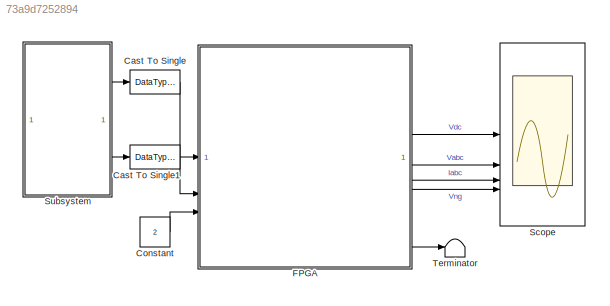
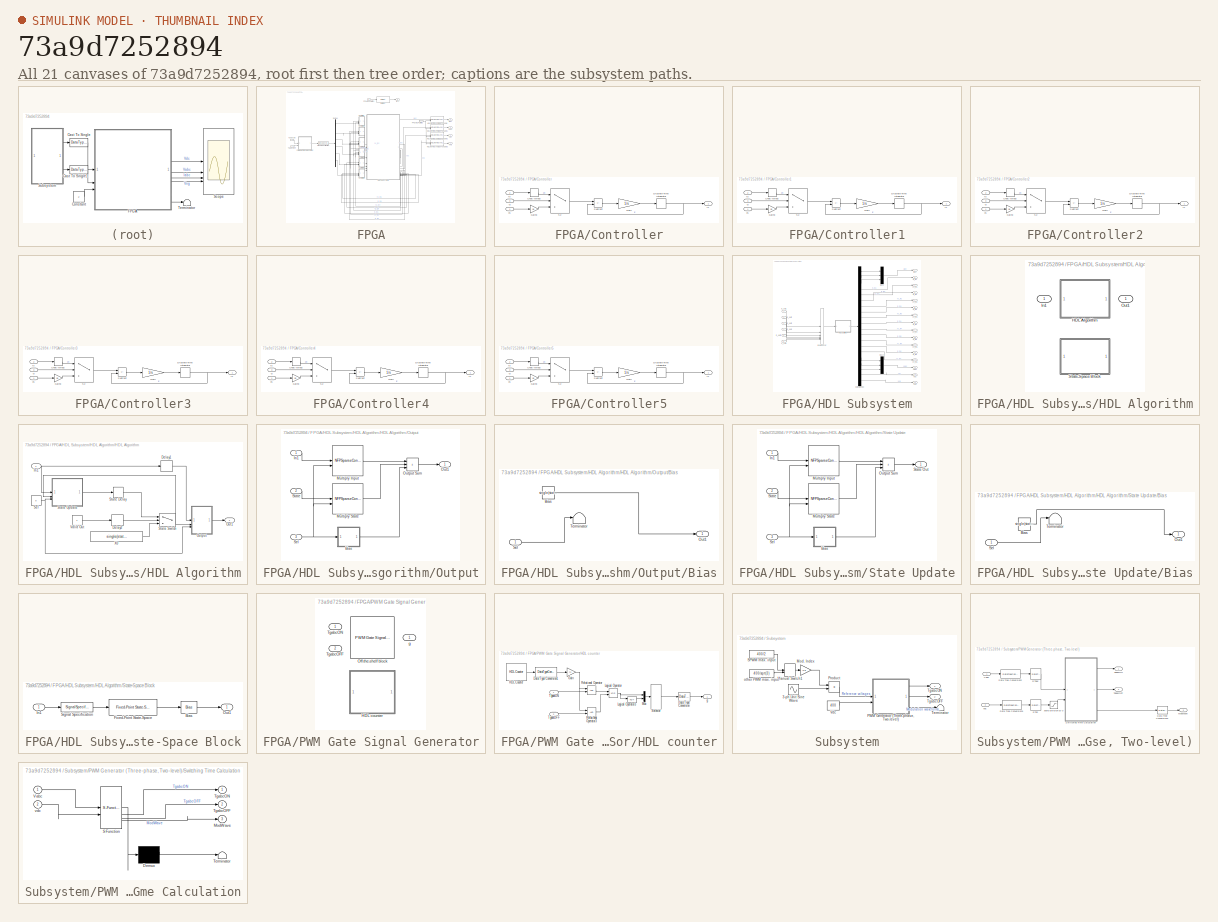
[diagram: thumbnail index - all 21 canvases of the model, root first then tree order]
MODEL slx_73a9d7252894
KIND model
CONFIG AbsTol = auto
CONFIG EnableMultiTasking = off
CONFIG FixedStep = auto
CONFIG InitFcn = load('stateSpaceParameters.mat');
CONFIG MaxStep = auto
CONFIG MinStep = auto
CONFIG PreLoadFcn = ts = 1e-5; % local solver sample period\nfsw = 1e3; % switching frequency
CONFIG RelTol = 1e-3
CONFIG SampleTimeConstraint = Unconstrained
CONFIG SolverName = FixedStepAuto
CONFIG StartTime = 0.0
CONFIG StopTime = 0.1
BLOCK [DataTypeConversion] Cast To Single
  OutDataTypeStr = single
  RndMeth = Floor
  SaturateOnIntegerOverflow = off
BLOCK [DataTypeConversion] Cast To Single1
  OutDataTypeStr = single
  RndMeth = Floor
  SaturateOnIntegerOverflow = off
BLOCK [Constant] Constant
  OutDataTypeStr = uint16
  SampleTime = -1
  Value = 2
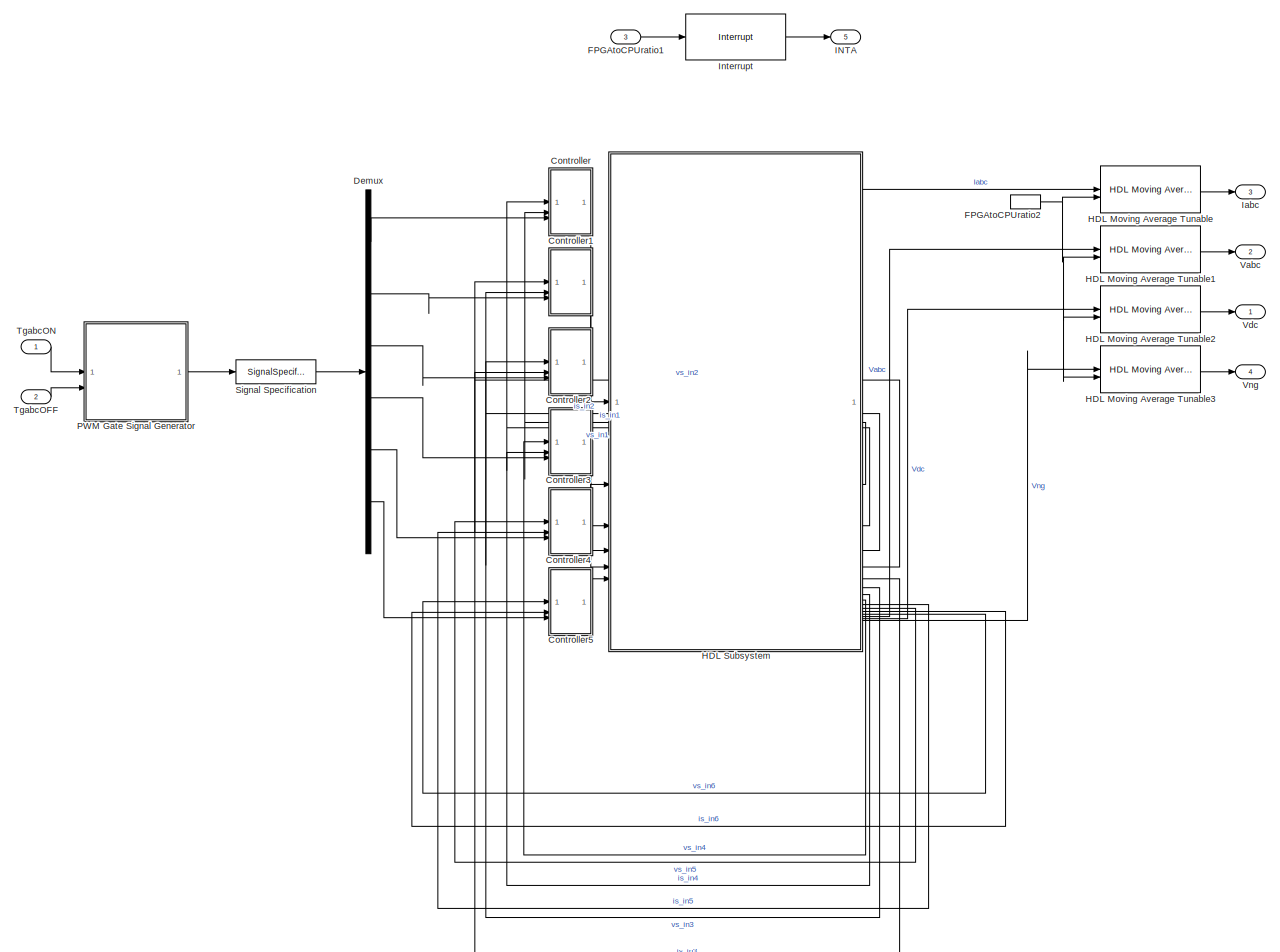
[diagram: FPGA - part 1/2, most of the canvas]
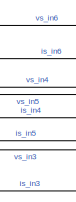
[diagram: FPGA - part 2/2, bottom center region]
BLOCK [SubSystem] FPGA
BLOCK [SubSystem] FPGA/Controller
BLOCK [DiscreteIntegrator] FPGA/Controller/Discrete-Time Integrator
  ICPrevOutput = DiscIntNeverNeededParam
  ICPrevScaledInput = DiscIntNeverNeededParam
  InitialConditionSetting = Auto
  IntegratorMethod = Accumulation: Forward Euler
  SampleTime = -1
BLOCK [Inport] FPGA/Controller/G
  Port = 3
BLOCK [Gain] FPGA/Controller/Gain
  Gain = 1/s
BLOCK [Gain] FPGA/Controller/Gain3
  Gain = Gs
BLOCK [Switch] FPGA/Controller/S2
  Criteria = u2 > Threshold
  InputSameDT = off
  SaturateOnIntegerOverflow = off
  Threshold = threshold
BLOCK [Sum] FPGA/Controller/Subtract
  IconShape = rectangular
  Inputs = +-
BLOCK [UnaryMinus] FPGA/Controller/Unary Minus
BLOCK [Outport] FPGA/Controller/ic
BLOCK [Inport] FPGA/Controller/is
  NameLocation = top
  Port = 2
BLOCK [Inport] FPGA/Controller/vs
BLOCK [SubSystem] FPGA/Controller1
BLOCK [DiscreteIntegrator] FPGA/Controller1/Discrete-Time Integrator
  ICPrevOutput = DiscIntNeverNeededParam
  ICPrevScaledInput = DiscIntNeverNeededParam
  InitialConditionSetting = Auto
  IntegratorMethod = Accumulation: Forward Euler
  SampleTime = -1
BLOCK [Inport] FPGA/Controller1/G
  Port = 3
BLOCK [Gain] FPGA/Controller1/Gain
  Gain = 1/s
BLOCK [Gain] FPGA/Controller1/Gain3
  Gain = Gs
BLOCK [Switch] FPGA/Controller1/S2
  Criteria = u2 > Threshold
  InputSameDT = off
  SaturateOnIntegerOverflow = off
  Threshold = threshold
BLOCK [Sum] FPGA/Controller1/Subtract
  IconShape = rectangular
  Inputs = +-
BLOCK [UnaryMinus] FPGA/Controller1/Unary Minus
BLOCK [Outport] FPGA/Controller1/ic
BLOCK [Inport] FPGA/Controller1/is
  NameLocation = top
  Port = 2
BLOCK [Inport] FPGA/Controller1/vs
BLOCK [SubSystem] FPGA/Controller2
BLOCK [DiscreteIntegrator] FPGA/Controller2/Discrete-Time Integrator
  ICPrevOutput = DiscIntNeverNeededParam
  ICPrevScaledInput = DiscIntNeverNeededParam
  InitialConditionSetting = Auto
  IntegratorMethod = Accumulation: Forward Euler
  SampleTime = -1
BLOCK [Inport] FPGA/Controller2/G
  Port = 3
BLOCK [Gain] FPGA/Controller2/Gain
  Gain = 1/s
BLOCK [Gain] FPGA/Controller2/Gain3
  Gain = Gs
BLOCK [Switch] FPGA/Controller2/S2
  Criteria = u2 > Threshold
  InputSameDT = off
  SaturateOnIntegerOverflow = off
  Threshold = threshold
BLOCK [Sum] FPGA/Controller2/Subtract
  IconShape = rectangular
  Inputs = +-
BLOCK [UnaryMinus] FPGA/Controller2/Unary Minus
BLOCK [Outport] FPGA/Controller2/ic
BLOCK [Inport] FPGA/Controller2/is
  NameLocation = top
  Port = 2
BLOCK [Inport] FPGA/Controller2/vs
BLOCK [SubSystem] FPGA/Controller3
BLOCK [DiscreteIntegrator] FPGA/Controller3/Discrete-Time Integrator
  ICPrevOutput = DiscIntNeverNeededParam
  ICPrevScaledInput = DiscIntNeverNeededParam
  InitialConditionSetting = Auto
  IntegratorMethod = Accumulation: Forward Euler
  SampleTime = -1
BLOCK [Inport] FPGA/Controller3/G
  Port = 3
BLOCK [Gain] FPGA/Controller3/Gain
  Gain = 1/s
BLOCK [Gain] FPGA/Controller3/Gain3
  Gain = Gs
BLOCK [Switch] FPGA/Controller3/S2
  Criteria = u2 > Threshold
  InputSameDT = off
  SaturateOnIntegerOverflow = off
  Threshold = threshold
BLOCK [Sum] FPGA/Controller3/Subtract
  IconShape = rectangular
  Inputs = +-
BLOCK [UnaryMinus] FPGA/Controller3/Unary Minus
BLOCK [Outport] FPGA/Controller3/ic
BLOCK [Inport] FPGA/Controller3/is
  NameLocation = top
  Port = 2
BLOCK [Inport] FPGA/Controller3/vs
BLOCK [SubSystem] FPGA/Controller4
BLOCK [DiscreteIntegrator] FPGA/Controller4/Discrete-Time Integrator
  ICPrevOutput = DiscIntNeverNeededParam
  ICPrevScaledInput = DiscIntNeverNeededParam
  InitialConditionSetting = Auto
  IntegratorMethod = Accumulation: Forward Euler
  SampleTime = -1
BLOCK [Inport] FPGA/Controller4/G
  Port = 3
BLOCK [Gain] FPGA/Controller4/Gain
  Gain = 1/s
BLOCK [Gain] FPGA/Controller4/Gain3
  Gain = Gs
BLOCK [Switch] FPGA/Controller4/S2
  Criteria = u2 > Threshold
  InputSameDT = off
  SaturateOnIntegerOverflow = off
  Threshold = threshold
BLOCK [Sum] FPGA/Controller4/Subtract
  IconShape = rectangular
  Inputs = +-
BLOCK [UnaryMinus] FPGA/Controller4/Unary Minus
BLOCK [Outport] FPGA/Controller4/ic
BLOCK [Inport] FPGA/Controller4/is
  NameLocation = top
  Port = 2
BLOCK [Inport] FPGA/Controller4/vs
BLOCK [SubSystem] FPGA/Controller5
BLOCK [DiscreteIntegrator] FPGA/Controller5/Discrete-Time Integrator
  ICPrevOutput = DiscIntNeverNeededParam
  ICPrevScaledInput = DiscIntNeverNeededParam
  InitialConditionSetting = Auto
  IntegratorMethod = Accumulation: Forward Euler
  SampleTime = -1
BLOCK [Inport] FPGA/Controller5/G
  Port = 3
BLOCK [Gain] FPGA/Controller5/Gain
  Gain = 1/s
BLOCK [Gain] FPGA/Controller5/Gain3
  Gain = Gs
BLOCK [Switch] FPGA/Controller5/S2
  Criteria = u2 > Threshold
  InputSameDT = off
  SaturateOnIntegerOverflow = off
  Threshold = threshold
BLOCK [Sum] FPGA/Controller5/Subtract
  IconShape = rectangular
  Inputs = +-
BLOCK [UnaryMinus] FPGA/Controller5/Unary Minus
BLOCK [Outport] FPGA/Controller5/ic
BLOCK [Inport] FPGA/Controller5/is
  NameLocation = top
  Port = 2
BLOCK [Inport] FPGA/Controller5/vs
BLOCK [Demux] FPGA/Demux
  Outputs = 6
BLOCK [Inport] FPGA/FPGAtoCPUratio1
  LockScale = on
  OutDataTypeStr = uint16
  Port = 3
BLOCK [InportShadow] FPGA/FPGAtoCPUratio2
  LockScale = on
  OutDataTypeStr = uint16
  Port = 3
BLOCK [Reference] FPGA/HDL Moving Average Tunable  REF=fpga_utils_lib/HDL Moving Average Tunable  (lib defined in slx_141b27237374)
  SourceBlock = fpga_utils_lib/HDL Moving Average Tunable
  SourceType = SubSystem
BLOCK [Reference] FPGA/HDL Moving Average Tunable1  REF=fpga_utils_lib/HDL Moving Average Tunable  (lib defined in slx_141b27237374)
  SourceBlock = fpga_utils_lib/HDL Moving Average Tunable
  SourceType = SubSystem
BLOCK [Reference] FPGA/HDL Moving Average Tunable2  REF=fpga_utils_lib/HDL Moving Average Tunable  (lib defined in slx_141b27237374)
  SourceBlock = fpga_utils_lib/HDL Moving Average Tunable
  SourceType = SubSystem
BLOCK [Reference] FPGA/HDL Moving Average Tunable3  REF=fpga_utils_lib/HDL Moving Average Tunable  (lib defined in slx_141b27237374)
  SourceBlock = fpga_utils_lib/HDL Moving Average Tunable
  SourceType = SubSystem
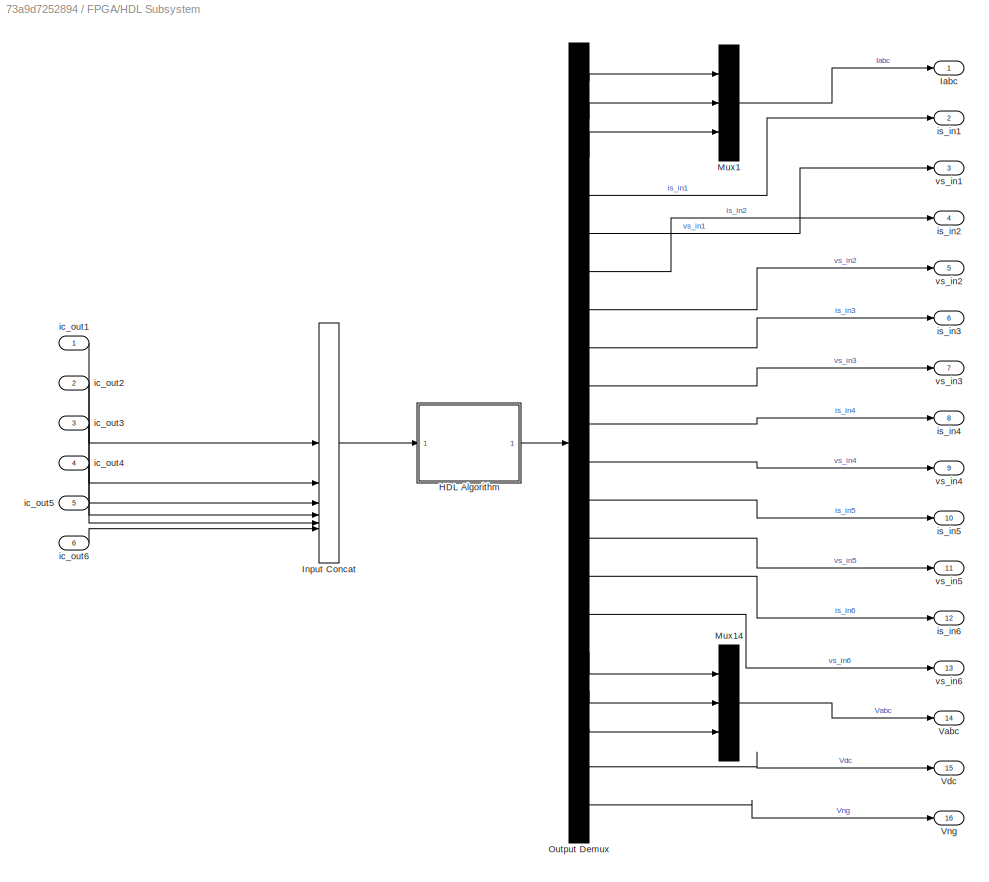
BLOCK [SubSystem] FPGA/HDL Subsystem
  VariantControl = HDLSubsys
BLOCK [SubSystem] FPGA/HDL Subsystem/HDL Algorithm
  LabelModeActiveChoice = StateSpaceBlock
  Variant = on
  VariantControl = Choice
  VariantControlMode = label
BLOCK [SubSystem] FPGA/HDL Subsystem/HDL Algorithm/HDL Algorithm
  VariantControl = HDL
BLOCK [Delay] FPGA/HDL Subsystem/HDL Algorithm/HDL Algorithm/Delay1
  DelayLength = 1
  InputPortMap = u0
BLOCK [Delay] FPGA/HDL Subsystem/HDL Algorithm/HDL Algorithm/Delay2
  InputPortMap = u0
BLOCK [Inport] FPGA/HDL Subsystem/HDL Algorithm/HDL Algorithm/In1
BLOCK [Outport] FPGA/HDL Subsystem/HDL Algorithm/HDL Algorithm/Out1
  VectorParamsAs1DForOutWhenUnconnected = off
BLOCK [SubSystem] FPGA/HDL Subsystem/HDL Algorithm/HDL Algorithm/Output
BLOCK [SubSystem] FPGA/HDL Subsystem/HDL Algorithm/HDL Algorithm/Output/Bias
BLOCK [Constant] FPGA/HDL Subsystem/HDL Algorithm/HDL Algorithm/Output/Bias/Bias
  SampleTime = -1
  Value = single(stateSpaceParameters_1.Y0d)
BLOCK [Outport] FPGA/HDL Subsystem/HDL Algorithm/HDL Algorithm/Output/Bias/Out1
  VectorParamsAs1DForOutWhenUnconnected = off
BLOCK [Inport] FPGA/HDL Subsystem/HDL Algorithm/HDL Algorithm/Output/Bias/Sel
BLOCK [Terminator] FPGA/HDL Subsystem/HDL Algorithm/HDL Algorithm/Output/Bias/Terminator
BLOCK [Inport] FPGA/HDL Subsystem/HDL Algorithm/HDL Algorithm/Output/In1
BLOCK [Reference] FPGA/HDL Subsystem/HDL Algorithm/HDL Algorithm/Output/Multiply Input  REF=hdlssclib/NFPSparseConstMultiply
  SourceBlock = hdlssclib/NFPSparseConstMultiply
BLOCK [Reference] FPGA/HDL Subsystem/HDL Algorithm/HDL Algorithm/Output/Multiply State  REF=hdlssclib/NFPSparseConstMultiply
  SourceBlock = hdlssclib/NFPSparseConstMultiply
BLOCK [Outport] FPGA/HDL Subsystem/HDL Algorithm/HDL Algorithm/Output/Out1
  VectorParamsAs1DForOutWhenUnconnected = off
BLOCK [Sum] FPGA/HDL Subsystem/HDL Algorithm/HDL Algorithm/Output/Output Sum
  IconShape = rectangular
  Inputs = +++
BLOCK [Inport] FPGA/HDL Subsystem/HDL Algorithm/HDL Algorithm/Output/Sel
  Port = 3
BLOCK [Inport] FPGA/HDL Subsystem/HDL Algorithm/HDL Algorithm/Output/State
  Port = 2
BLOCK [Constant] FPGA/HDL Subsystem/HDL Algorithm/HDL Algorithm/Sel
  OutDataTypeStr = uint32
  SampleTime = -1
  Value = 0
BLOCK [Delay] FPGA/HDL Subsystem/HDL Algorithm/HDL Algorithm/State Delay
  DelayLength = 1
  InitialCondition = single(stateSpaceParameters_1.X0)
  InputPortMap = u0
BLOCK [Switch] FPGA/HDL Subsystem/HDL Algorithm/HDL Algorithm/State Switch
  Criteria = u2 ~= 0
  InputSameDT = off
  SaturateOnIntegerOverflow = off
BLOCK [SubSystem] FPGA/HDL Subsystem/HDL Algorithm/HDL Algorithm/State Update
BLOCK [SubSystem] FPGA/HDL Subsystem/HDL Algorithm/HDL Algorithm/State Update/Bias
BLOCK [Constant] FPGA/HDL Subsystem/HDL Algorithm/HDL Algorithm/State Update/Bias/Bias
  SampleTime = -1
  Value = single(stateSpaceParameters_1.F0d)
BLOCK [Outport] FPGA/HDL Subsystem/HDL Algorithm/HDL Algorithm/State Update/Bias/Out1
  VectorParamsAs1DForOutWhenUnconnected = off
BLOCK [Inport] FPGA/HDL Subsystem/HDL Algorithm/HDL Algorithm/State Update/Bias/Sel
BLOCK [Terminator] FPGA/HDL Subsystem/HDL Algorithm/HDL Algorithm/State Update/Bias/Terminator
BLOCK [Inport] FPGA/HDL Subsystem/HDL Algorithm/HDL Algorithm/State Update/In1
BLOCK [Reference] FPGA/HDL Subsystem/HDL Algorithm/HDL Algorithm/State Update/Multiply Input  REF=hdlssclib/NFPSparseConstMultiply
  SourceBlock = hdlssclib/NFPSparseConstMultiply
BLOCK [Reference] FPGA/HDL Subsystem/HDL Algorithm/HDL Algorithm/State Update/Multiply State  REF=hdlssclib/NFPSparseConstMultiply
  SourceBlock = hdlssclib/NFPSparseConstMultiply
BLOCK [Sum] FPGA/HDL Subsystem/HDL Algorithm/HDL Algorithm/State Update/Output Sum
  IconShape = rectangular
  Inputs = +++
BLOCK [Inport] FPGA/HDL Subsystem/HDL Algorithm/HDL Algorithm/State Update/Sel
  Port = 3
BLOCK [Inport] FPGA/HDL Subsystem/HDL Algorithm/HDL Algorithm/State Update/State
  Port = 2
BLOCK [Outport] FPGA/HDL Subsystem/HDL Algorithm/HDL Algorithm/State Update/State Out
  OutDataTypeStr = single
  VectorParamsAs1DForOutWhenUnconnected = off
BLOCK [Constant] FPGA/HDL Subsystem/HDL Algorithm/HDL Algorithm/Valid Out
  OutDataTypeStr = boolean
  SampleTime = -1
BLOCK [Constant] FPGA/HDL Subsystem/HDL Algorithm/HDL Algorithm/X0
  SampleTime = -1
  Value = single(stateSpaceParameters_1.X0)
BLOCK [Inport] FPGA/HDL Subsystem/HDL Algorithm/In1
BLOCK [Outport] FPGA/HDL Subsystem/HDL Algorithm/Out1
BLOCK [SubSystem] FPGA/HDL Subsystem/HDL Algorithm/State-Space Block
  VariantControl = StateSpaceBlock
BLOCK [Bias] FPGA/HDL Subsystem/HDL Algorithm/State-Space Block/Bias
  Bias = stateSpaceParameters_1.Y0d
  SaturateOnIntegerOverflow = off
BLOCK [Reference] FPGA/HDL Subsystem/HDL Algorithm/State-Space Block/Fixed-Point State-Space  REF=simulink/Additional Math
& Discrete/Additional
Discrete/Fixed-Point
State-Space
  SourceBlock = simulink/Additional Math\n& Discrete/Additional\nDiscrete/Fixed-Point\nState-Space
  SourceType = Fixed-Point State-Space
BLOCK [Inport] FPGA/HDL Subsystem/HDL Algorithm/State-Space Block/In1
BLOCK [Outport] FPGA/HDL Subsystem/HDL Algorithm/State-Space Block/Out1
BLOCK [SignalSpecification] FPGA/HDL Subsystem/HDL Algorithm/State-Space Block/Signal Specification
  OutDataTypeStr = single
BLOCK [Outport] FPGA/HDL Subsystem/Iabc
BLOCK [Concatenate] FPGA/HDL Subsystem/Input Concat
  NumInputs = 6
BLOCK [Mux] FPGA/HDL Subsystem/Mux1
  DisplayOption = bar
  Inputs = 3
BLOCK [Mux] FPGA/HDL Subsystem/Mux14
  DisplayOption = bar
  Inputs = 3
BLOCK [Demux] FPGA/HDL Subsystem/Output Demux
  Outputs = 20
BLOCK [Outport] FPGA/HDL Subsystem/Vabc
  Port = 14
BLOCK [Outport] FPGA/HDL Subsystem/Vdc
  Port = 15
BLOCK [Outport] FPGA/HDL Subsystem/Vng
  Port = 16
BLOCK [Inport] FPGA/HDL Subsystem/ic_out1
BLOCK [Inport] FPGA/HDL Subsystem/ic_out2
  Port = 2
BLOCK [Inport] FPGA/HDL Subsystem/ic_out3
  Port = 3
BLOCK [Inport] FPGA/HDL Subsystem/ic_out4
  Port = 4
BLOCK [Inport] FPGA/HDL Subsystem/ic_out5
  Port = 5
BLOCK [Inport] FPGA/HDL Subsystem/ic_out6
  Port = 6
BLOCK [Outport] FPGA/HDL Subsystem/is_in1
  Port = 2
BLOCK [Outport] FPGA/HDL Subsystem/is_in2
  Port = 4
BLOCK [Outport] FPGA/HDL Subsystem/is_in3
  Port = 6
BLOCK [Outport] FPGA/HDL Subsystem/is_in4
  Port = 8
BLOCK [Outport] FPGA/HDL Subsystem/is_in5
  Port = 10
BLOCK [Outport] FPGA/HDL Subsystem/is_in6
  Port = 12
BLOCK [Outport] FPGA/HDL Subsystem/vs_in1
  Port = 3
BLOCK [Outport] FPGA/HDL Subsystem/vs_in2
  Port = 5
BLOCK [Outport] FPGA/HDL Subsystem/vs_in3
  Port = 7
BLOCK [Outport] FPGA/HDL Subsystem/vs_in4
  Port = 9
BLOCK [Outport] FPGA/HDL Subsystem/vs_in5
  Port = 11
BLOCK [Outport] FPGA/HDL Subsystem/vs_in6
  Port = 13
BLOCK [Outport] FPGA/INTA
  Port = 5
BLOCK [Outport] FPGA/Iabc
  Port = 3
BLOCK [Reference] FPGA/Interrupt  REF=fpga_utils_lib/Interrupt  (lib defined in slx_141b27237374)
  SourceBlock = fpga_utils_lib/Interrupt
  SourceType = SubSystem
BLOCK [SubSystem] FPGA/PWM Gate Signal Generator
  LabelModeActiveChoice = hdlVar
  Variant = on
  VariantControl = Choice
  VariantControlMode = label
BLOCK [SubSystem] FPGA/PWM Gate Signal Generator/HDL counter
  LibrarySourceBlock = ee_sl_lib/Pulse Width\nModulation/PWM Gate Signal Generator\n(Three-phase, Two-level)
  VariantControl = hdlVar
BLOCK [DataTypeConversion] FPGA/PWM Gate Signal Generator/HDL counter/Data Type Conversion
  RndMeth = Floor
  SaturateOnIntegerOverflow = off
BLOCK [DataTypeConversion] FPGA/PWM Gate Signal Generator/HDL counter/Data Type Conversion1
  RndMeth = Floor
  SaturateOnIntegerOverflow = off
BLOCK [Gain] FPGA/PWM Gate Signal Generator/HDL counter/Gain
  Gain = ts
BLOCK [Reference] FPGA/PWM Gate Signal Generator/HDL counter/HDL Counter  REF=hdlsllib/Sources/HDL Counter
  SourceBlock = hdlsllib/Sources/HDL Counter
  SourceType = HDL Counter
BLOCK [Logic] FPGA/PWM Gate Signal Generator/HDL counter/Logical Operator
  AllPortsSameDT = off
  Operator = XOR
  OutDataTypeStr = boolean
BLOCK [Logic] FPGA/PWM Gate Signal Generator/HDL counter/Logical Operator3
  AllPortsSameDT = off
  Operator = NOT
  OutDataTypeStr = boolean
BLOCK [Mux] FPGA/PWM Gate Signal Generator/HDL counter/Mux
  DisplayOption = bar
  Inputs = 2
BLOCK [RelationalOperator] FPGA/PWM Gate Signal Generator/HDL counter/Relational Operator
  OutDataTypeStr = boolean
BLOCK [RelationalOperator] FPGA/PWM Gate Signal Generator/HDL counter/Relational Operator3
  OutDataTypeStr = boolean
BLOCK [Selector] FPGA/PWM Gate Signal Generator/HDL counter/Selector
  IndexOptions = Index vector (dialog)
  Indices = [1 4 2 5 3 6]
  InputPortWidth = 6
  OutputSizes = 1
BLOCK [Inport] FPGA/PWM Gate Signal Generator/HDL counter/TgabcOFF
  Port = 2
BLOCK [Inport] FPGA/PWM Gate Signal Generator/HDL counter/TgabcON
BLOCK [Outport] FPGA/PWM Gate Signal Generator/HDL counter/g
  VectorParamsAs1DForOutWhenUnconnected = off
BLOCK [Reference] FPGA/PWM Gate Signal Generator/Off-the-shelf block  REF=eePwmGeneratorTwoLevel/PWM Gate Signal Generator
(Three-phase, Two-level)
  LibrarySourceBlock = ee_sl_lib/Pulse Width\nModulation/PWM Gate Signal Generator\n(Three-phase, Two-level)
  SourceBlock = eePwmGeneratorTwoLevel/PWM Gate Signal Generator\n(Three-phase, Two-level)
  SourceType = PWM Gate Signal Generator (three-phase, two-level)
BLOCK [Inport] FPGA/PWM Gate Signal Generator/TgabcOFF
  Port = 2
BLOCK [Inport] FPGA/PWM Gate Signal Generator/TgabcON
BLOCK [Outport] FPGA/PWM Gate Signal Generator/g
BLOCK [SignalSpecification] FPGA/Signal Specification
  LockScale = on
  OutDataTypeStr = boolean
BLOCK [Inport] FPGA/TgabcOFF
  Port = 2
BLOCK [Inport] FPGA/TgabcON
BLOCK [Outport] FPGA/Vabc
  Port = 2
BLOCK [Outport] FPGA/Vdc
BLOCK [Outport] FPGA/Vng
  Port = 4
BLOCK [Scope] Scope
  Floating = off
  NumInputPorts = 4
  ScopeSpecificationString = Simulink.scopes.TimeScopeBlockCfg('CurrentConfiguration', extmgr.ConfigurationSet(extmgr.Configuration('Core','General UI',true),extmgr.Configuration('Core','Source UI',true),extmgr.Configuration('Sources','WiredSimulink',true),extmgr.Configuration('Visuals','Time Domain',true,'SerializedDisplays',{struct('MinYLimReal','-50.00000','MaxYLimReal','450.00000','YLabelReal','','MinYLimMag','0.00000','M...<+3485ch>
BLOCK [SubSystem] Subsystem
BLOCK [Sin] Subsystem/3-ph Unit Sine Wave
  Frequency = 2*pi*60
  Phase = [0  -2*pi/3  2*pi/3] + pi/2
  SampleTime = ts
BLOCK [ManualSwitch] Subsystem/Manual Switch1
  CurrentSetting = 0
BLOCK [Gain] Subsystem/Mod. Index
  Gain = 0.8
BLOCK [SubSystem] Subsystem/PWM Generator (Three-phase, Two-level)
  AncestorBlock = eePwmGeneratorTwoLevel/PWM Generator\n(Three-phase, Two-level)
  CloseFcn = ee_sli_rtmsupport( 'closefcn', gcbh );
  CopyFcn = ee_sli_rtmsupport( 'copyfcn', gcbh );
  DeleteFcn = ee_sli_rtmsupport( 'deletefcn', gcbh );
  LibrarySourceBlock = eePwmGeneratorTwoLevel/PWM Generator\n(Three-phase, Two-level)
  LoadFcn = ee_sli_rtmsupport( 'loadfcn', gcbh );
  ModelCloseFcn = ee_sli_rtmsupport( 'modelclosefcn', gcbh );
  OpenFcn = ee_sli_rtmsupport( 'openfcn', gcbh );
  PostSaveFcn = ee_sli_rtmsupport( 'postsavefcn', gcbh );
  PreCopyFcn = ee_sli_rtmsupport( 'precopyfcn', gcbh );
  PreDeleteFcn = ee_sli_rtmsupport( 'predeletefcn', gcbh );
  PreSaveFcn = %pe_sli_rtmsupport( 'presavefcn', gcbh );
BLOCK [DataTypeConversion] Subsystem/PWM Generator (Three-phase, Two-level)/Data Type Conversion1
  RndMeth = Floor
  SaturateOnIntegerOverflow = off
BLOCK [DataTypeConversion] Subsystem/PWM Generator (Three-phase, Two-level)/Data Type Conversion2
  OutDataTypeStr = double
  RndMeth = Floor
  SaturateOnIntegerOverflow = off
BLOCK [DataTypeConversion] Subsystem/PWM Generator (Three-phase, Two-level)/Data Type Conversion3
  OutDataTypeStr = double
  RndMeth = Floor
  SaturateOnIntegerOverflow = off
BLOCK [Outport] Subsystem/PWM Generator (Three-phase, Two-level)/ModWave
  Port = 3
  VectorParamsAs1DForOutWhenUnconnected = off
BLOCK [RateTransition] Subsystem/PWM Generator (Three-phase, Two-level)/RTabc
  OutPortSampleTime = RateTransitionOnInput
BLOCK [RateTransition] Subsystem/PWM Generator (Three-phase, Two-level)/RTdc
  OutPortSampleTime = RateTransitionOnInput
BLOCK [SubSystem] Subsystem/PWM Generator (Three-phase, Two-level)/Switching Time Calculation
  ErrorFcn = Stateflow.Translate.translate
  PermitHierarchicalResolution = ExplicitOnly
  SFBlockType = MATLAB Function
  TreatAsAtomicUnit = on
BLOCK [Demux] Subsystem/PWM Generator (Three-phase, Two-level)/Switching Time Calculation/ Demux 
  Outputs = 1
BLOCK [S-Function] Subsystem/PWM Generator (Three-phase, Two-level)/Switching Time Calculation/ SFunction 
  EnableBusSupport = on
  FunctionName = sf_sfun
  Parameters = PWM,fsw
  PortCounts = [2 4]
  SFcnIsStateOwnerBlock = off
  SFunctionDeploymentMode = off
  Tag = Stateflow S-Function 7
BLOCK [Terminator] Subsystem/PWM Generator (Three-phase, Two-level)/Switching Time Calculation/ Terminator 
BLOCK [Outport] Subsystem/PWM Generator (Three-phase, Two-level)/Switching Time Calculation/ModWave
  Port = 3
  VectorParamsAs1DForOutWhenUnconnected = off
BLOCK [Outport] Subsystem/PWM Generator (Three-phase, Two-level)/Switching Time Calculation/TgabcOFF
  Port = 2
  VectorParamsAs1DForOutWhenUnconnected = off
BLOCK [Outport] Subsystem/PWM Generator (Three-phase, Two-level)/Switching Time Calculation/TgabcON
  VectorParamsAs1DForOutWhenUnconnected = off
BLOCK [Inport] Subsystem/PWM Generator (Three-phase, Two-level)/Switching Time Calculation/Vabc
BLOCK [Inport] Subsystem/PWM Generator (Three-phase, Two-level)/Switching Time Calculation/vdc
  Port = 2
BLOCK [Outport] Subsystem/PWM Generator (Three-phase, Two-level)/TgabcOFF
  Port = 2
BLOCK [Outport] Subsystem/PWM Generator (Three-phase, Two-level)/TgabcON
BLOCK [Inport] Subsystem/PWM Generator (Three-phase, Two-level)/Vabc
BLOCK [Saturate] Subsystem/PWM Generator (Three-phase, Two-level)/avoid division by 0
  LowerLimit = eps
  UpperLimit = inf
BLOCK [Inport] Subsystem/PWM Generator (Three-phase, Two-level)/vdc
  Port = 2
BLOCK [Product] Subsystem/Product
BLOCK [Constant] Subsystem/SPWM max. input
  Value = 400/2
BLOCK [Terminator] Subsystem/Terminator
BLOCK [Outport] Subsystem/TgabcOFF
  Port = 2
BLOCK [Outport] Subsystem/TgabcON
BLOCK [Constant] Subsystem/Vdc
  Value = 400
BLOCK [Constant] Subsystem/other PWM max. input
  Value = 400/sqrt(3)
BLOCK [Terminator] Terminator
LINE Cast To Single1:1 -> FPGA:2
LINE Cast To Single:1 -> FPGA:1
LINE Constant:1 -> FPGA:3
NET FPGA/Controller/Discrete-Time Integrator:1 -> FPGA/Controller/Subtract:2, FPGA/Controller/ic:1
LINE FPGA/Controller/G:1 -> FPGA/Controller/S2:2
LINE FPGA/Controller/Gain3:1 -> FPGA/Controller/S2:3
LINE FPGA/Controller/Gain:1 -> FPGA/Controller/Discrete-Time Integrator:1
LINE FPGA/Controller/S2:1 -> FPGA/Controller/Subtract:1
LINE FPGA/Controller/Subtract:1 -> FPGA/Controller/Gain:1
LINE FPGA/Controller/Unary Minus:1 -> FPGA/Controller/S2:1
LINE FPGA/Controller/is:1 -> FPGA/Controller/Unary Minus:1
LINE FPGA/Controller/vs:1 -> FPGA/Controller/Gain3:1
NET FPGA/Controller1/Discrete-Time Integrator:1 -> FPGA/Controller1/Subtract:2, FPGA/Controller1/ic:1
LINE FPGA/Controller1/G:1 -> FPGA/Controller1/S2:2
LINE FPGA/Controller1/Gain3:1 -> FPGA/Controller1/S2:3
LINE FPGA/Controller1/Gain:1 -> FPGA/Controller1/Discrete-Time Integrator:1
LINE FPGA/Controller1/S2:1 -> FPGA/Controller1/Subtract:1
LINE FPGA/Controller1/Subtract:1 -> FPGA/Controller1/Gain:1
LINE FPGA/Controller1/Unary Minus:1 -> FPGA/Controller1/S2:1
LINE FPGA/Controller1/is:1 -> FPGA/Controller1/Unary Minus:1
LINE FPGA/Controller1/vs:1 -> FPGA/Controller1/Gain3:1
LINE FPGA/Controller1:1 -> FPGA/HDL Subsystem:2
NET FPGA/Controller2/Discrete-Time Integrator:1 -> FPGA/Controller2/Subtract:2, FPGA/Controller2/ic:1
LINE FPGA/Controller2/G:1 -> FPGA/Controller2/S2:2
LINE FPGA/Controller2/Gain3:1 -> FPGA/Controller2/S2:3
LINE FPGA/Controller2/Gain:1 -> FPGA/Controller2/Discrete-Time Integrator:1
LINE FPGA/Controller2/S2:1 -> FPGA/Controller2/Subtract:1
LINE FPGA/Controller2/Subtract:1 -> FPGA/Controller2/Gain:1
LINE FPGA/Controller2/Unary Minus:1 -> FPGA/Controller2/S2:1
LINE FPGA/Controller2/is:1 -> FPGA/Controller2/Unary Minus:1
LINE FPGA/Controller2/vs:1 -> FPGA/Controller2/Gain3:1
LINE FPGA/Controller2:1 -> FPGA/HDL Subsystem:3
NET FPGA/Controller3/Discrete-Time Integrator:1 -> FPGA/Controller3/Subtract:2, FPGA/Controller3/ic:1
LINE FPGA/Controller3/G:1 -> FPGA/Controller3/S2:2
LINE FPGA/Controller3/Gain3:1 -> FPGA/Controller3/S2:3
LINE FPGA/Controller3/Gain:1 -> FPGA/Controller3/Discrete-Time Integrator:1
LINE FPGA/Controller3/S2:1 -> FPGA/Controller3/Subtract:1
LINE FPGA/Controller3/Subtract:1 -> FPGA/Controller3/Gain:1
LINE FPGA/Controller3/Unary Minus:1 -> FPGA/Controller3/S2:1
LINE FPGA/Controller3/is:1 -> FPGA/Controller3/Unary Minus:1
LINE FPGA/Controller3/vs:1 -> FPGA/Controller3/Gain3:1
LINE FPGA/Controller3:1 -> FPGA/HDL Subsystem:4
NET FPGA/Controller4/Discrete-Time Integrator:1 -> FPGA/Controller4/Subtract:2, FPGA/Controller4/ic:1
LINE FPGA/Controller4/G:1 -> FPGA/Controller4/S2:2
LINE FPGA/Controller4/Gain3:1 -> FPGA/Controller4/S2:3
LINE FPGA/Controller4/Gain:1 -> FPGA/Controller4/Discrete-Time Integrator:1
LINE FPGA/Controller4/S2:1 -> FPGA/Controller4/Subtract:1
LINE FPGA/Controller4/Subtract:1 -> FPGA/Controller4/Gain:1
LINE FPGA/Controller4/Unary Minus:1 -> FPGA/Controller4/S2:1
LINE FPGA/Controller4/is:1 -> FPGA/Controller4/Unary Minus:1
LINE FPGA/Controller4/vs:1 -> FPGA/Controller4/Gain3:1
LINE FPGA/Controller4:1 -> FPGA/HDL Subsystem:5
NET FPGA/Controller5/Discrete-Time Integrator:1 -> FPGA/Controller5/Subtract:2, FPGA/Controller5/ic:1
LINE FPGA/Controller5/G:1 -> FPGA/Controller5/S2:2
LINE FPGA/Controller5/Gain3:1 -> FPGA/Controller5/S2:3
LINE FPGA/Controller5/Gain:1 -> FPGA/Controller5/Discrete-Time Integrator:1
LINE FPGA/Controller5/S2:1 -> FPGA/Controller5/Subtract:1
LINE FPGA/Controller5/Subtract:1 -> FPGA/Controller5/Gain:1
LINE FPGA/Controller5/Unary Minus:1 -> FPGA/Controller5/S2:1
LINE FPGA/Controller5/is:1 -> FPGA/Controller5/Unary Minus:1
LINE FPGA/Controller5/vs:1 -> FPGA/Controller5/Gain3:1
LINE FPGA/Controller5:1 -> FPGA/HDL Subsystem:6
LINE FPGA/Controller:1 -> FPGA/HDL Subsystem:1
LINE FPGA/Demux:1 -> FPGA/Controller:3
LINE FPGA/Demux:2 -> FPGA/Controller1:3
LINE FPGA/Demux:3 -> FPGA/Controller2:3
LINE FPGA/Demux:4 -> FPGA/Controller3:3
LINE FPGA/Demux:5 -> FPGA/Controller4:3
LINE FPGA/Demux:6 -> FPGA/Controller5:3
LINE FPGA/FPGAtoCPUratio1:1 -> FPGA/Interrupt:1
NET FPGA/FPGAtoCPUratio2:1 -> FPGA/HDL Moving Average Tunable1:2, FPGA/HDL Moving Average Tunable2:2, FPGA/HDL Moving Average Tunable3:2, FPGA/HDL Moving Average Tunable:2
LINE FPGA/HDL Moving Average Tunable1:1 -> FPGA/Vabc:1
LINE FPGA/HDL Moving Average Tunable2:1 -> FPGA/Vdc:1
LINE FPGA/HDL Moving Average Tunable3:1 -> FPGA/Vng:1
LINE FPGA/HDL Moving Average Tunable:1 -> FPGA/Iabc:1
LINE FPGA/HDL Subsystem/HDL Algorithm/HDL Algorithm/Delay1:1 -> FPGA/HDL Subsystem/HDL Algorithm/HDL Algorithm/Output:1
LINE FPGA/HDL Subsystem/HDL Algorithm/HDL Algorithm/Delay2:1 -> FPGA/HDL Subsystem/HDL Algorithm/HDL Algorithm/State Switch:2
NET FPGA/HDL Subsystem/HDL Algorithm/HDL Algorithm/In1:1 -> FPGA/HDL Subsystem/HDL Algorithm/HDL Algorithm/Delay1:1, FPGA/HDL Subsystem/HDL Algorithm/HDL Algorithm/State Update:1
LINE FPGA/HDL Subsystem/HDL Algorithm/HDL Algorithm/Output/Bias/Bias:1 -> FPGA/HDL Subsystem/HDL Algorithm/HDL Algorithm/Output/Bias/Out1:1
LINE FPGA/HDL Subsystem/HDL Algorithm/HDL Algorithm/Output/Bias/Sel:1 -> FPGA/HDL Subsystem/HDL Algorithm/HDL Algorithm/Output/Bias/Terminator:1
LINE FPGA/HDL Subsystem/HDL Algorithm/HDL Algorithm/Output/Bias:1 -> FPGA/HDL Subsystem/HDL Algorithm/HDL Algorithm/Output/Output Sum:3
LINE FPGA/HDL Subsystem/HDL Algorithm/HDL Algorithm/Output/In1:1 -> FPGA/HDL Subsystem/HDL Algorithm/HDL Algorithm/Output/Multiply Input:1
LINE FPGA/HDL Subsystem/HDL Algorithm/HDL Algorithm/Output/Multiply Input:1 -> FPGA/HDL Subsystem/HDL Algorithm/HDL Algorithm/Output/Output Sum:1
LINE FPGA/HDL Subsystem/HDL Algorithm/HDL Algorithm/Output/Multiply State:1 -> FPGA/HDL Subsystem/HDL Algorithm/HDL Algorithm/Output/Output Sum:2
LINE FPGA/HDL Subsystem/HDL Algorithm/HDL Algorithm/Output/Output Sum:1 -> FPGA/HDL Subsystem/HDL Algorithm/HDL Algorithm/Output/Out1:1
NET FPGA/HDL Subsystem/HDL Algorithm/HDL Algorithm/Output/Sel:1 -> FPGA/HDL Subsystem/HDL Algorithm/HDL Algorithm/Output/Bias:1, FPGA/HDL Subsystem/HDL Algorithm/HDL Algorithm/Output/Multiply Input:2, FPGA/HDL Subsystem/HDL Algorithm/HDL Algorithm/Output/Multiply State:2
LINE FPGA/HDL Subsystem/HDL Algorithm/HDL Algorithm/Output/State:1 -> FPGA/HDL Subsystem/HDL Algorithm/HDL Algorithm/Output/Multiply State:1
LINE FPGA/HDL Subsystem/HDL Algorithm/HDL Algorithm/Output:1 -> FPGA/HDL Subsystem/HDL Algorithm/HDL Algorithm/Out1:1
NET FPGA/HDL Subsystem/HDL Algorithm/HDL Algorithm/Sel:1 -> FPGA/HDL Subsystem/HDL Algorithm/HDL Algorithm/Output:3, FPGA/HDL Subsystem/HDL Algorithm/HDL Algorithm/State Update:3
LINE FPGA/HDL Subsystem/HDL Algorithm/HDL Algorithm/State Delay:1 -> FPGA/HDL Subsystem/HDL Algorithm/HDL Algorithm/State Switch:1
NET FPGA/HDL Subsystem/HDL Algorithm/HDL Algorithm/State Switch:1 -> FPGA/HDL Subsystem/HDL Algorithm/HDL Algorithm/Output:2, FPGA/HDL Subsystem/HDL Algorithm/HDL Algorithm/State Update:2
LINE FPGA/HDL Subsystem/HDL Algorithm/HDL Algorithm/State Update/Bias/Bias:1 -> FPGA/HDL Subsystem/HDL Algorithm/HDL Algorithm/State Update/Bias/Out1:1
LINE FPGA/HDL Subsystem/HDL Algorithm/HDL Algorithm/State Update/Bias/Sel:1 -> FPGA/HDL Subsystem/HDL Algorithm/HDL Algorithm/State Update/Bias/Terminator:1
LINE FPGA/HDL Subsystem/HDL Algorithm/HDL Algorithm/State Update/Bias:1 -> FPGA/HDL Subsystem/HDL Algorithm/HDL Algorithm/State Update/Output Sum:3
LINE FPGA/HDL Subsystem/HDL Algorithm/HDL Algorithm/State Update/In1:1 -> FPGA/HDL Subsystem/HDL Algorithm/HDL Algorithm/State Update/Multiply Input:1
LINE FPGA/HDL Subsystem/HDL Algorithm/HDL Algorithm/State Update/Multiply Input:1 -> FPGA/HDL Subsystem/HDL Algorithm/HDL Algorithm/State Update/Output Sum:1
LINE FPGA/HDL Subsystem/HDL Algorithm/HDL Algorithm/State Update/Multiply State:1 -> FPGA/HDL Subsystem/HDL Algorithm/HDL Algorithm/State Update/Output Sum:2
LINE FPGA/HDL Subsystem/HDL Algorithm/HDL Algorithm/State Update/Output Sum:1 -> FPGA/HDL Subsystem/HDL Algorithm/HDL Algorithm/State Update/State Out:1
NET FPGA/HDL Subsystem/HDL Algorithm/HDL Algorithm/State Update/Sel:1 -> FPGA/HDL Subsystem/HDL Algorithm/HDL Algorithm/State Update/Bias:1, FPGA/HDL Subsystem/HDL Algorithm/HDL Algorithm/State Update/Multiply Input:2, FPGA/HDL Subsystem/HDL Algorithm/HDL Algorithm/State Update/Multiply State:2
LINE FPGA/HDL Subsystem/HDL Algorithm/HDL Algorithm/State Update/State:1 -> FPGA/HDL Subsystem/HDL Algorithm/HDL Algorithm/State Update/Multiply State:1
LINE FPGA/HDL Subsystem/HDL Algorithm/HDL Algorithm/State Update:1 -> FPGA/HDL Subsystem/HDL Algorithm/HDL Algorithm/State Delay:1
LINE FPGA/HDL Subsystem/HDL Algorithm/HDL Algorithm/Valid Out:1 -> FPGA/HDL Subsystem/HDL Algorithm/HDL Algorithm/Delay2:1
LINE FPGA/HDL Subsystem/HDL Algorithm/HDL Algorithm/X0:1 -> FPGA/HDL Subsystem/HDL Algorithm/HDL Algorithm/State Switch:3
LINE FPGA/HDL Subsystem/HDL Algorithm/State-Space Block/Bias:1 -> FPGA/HDL Subsystem/HDL Algorithm/State-Space Block/Out1:1
LINE FPGA/HDL Subsystem/HDL Algorithm/State-Space Block/Fixed-Point State-Space:1 -> FPGA/HDL Subsystem/HDL Algorithm/State-Space Block/Bias:1
LINE FPGA/HDL Subsystem/HDL Algorithm/State-Space Block/In1:1 -> FPGA/HDL Subsystem/HDL Algorithm/State-Space Block/Signal Specification:1
LINE FPGA/HDL Subsystem/HDL Algorithm/State-Space Block/Signal Specification:1 -> FPGA/HDL Subsystem/HDL Algorithm/State-Space Block/Fixed-Point State-Space:1
LINE FPGA/HDL Subsystem/HDL Algorithm:1 -> FPGA/HDL Subsystem/Output Demux:1
LINE FPGA/HDL Subsystem/Input Concat:1 -> FPGA/HDL Subsystem/HDL Algorithm:1
LINE FPGA/HDL Subsystem/Mux14:1 -> FPGA/HDL Subsystem/Vabc:1
LINE FPGA/HDL Subsystem/Mux1:1 -> FPGA/HDL Subsystem/Iabc:1
LINE FPGA/HDL Subsystem/Output Demux:1 -> FPGA/HDL Subsystem/Mux1:1
LINE FPGA/HDL Subsystem/Output Demux:10 -> FPGA/HDL Subsystem/is_in4:1
LINE FPGA/HDL Subsystem/Output Demux:11 -> FPGA/HDL Subsystem/vs_in4:1
LINE FPGA/HDL Subsystem/Output Demux:12 -> FPGA/HDL Subsystem/is_in5:1
LINE FPGA/HDL Subsystem/Output Demux:13 -> FPGA/HDL Subsystem/vs_in5:1
LINE FPGA/HDL Subsystem/Output Demux:14 -> FPGA/HDL Subsystem/is_in6:1
LINE FPGA/HDL Subsystem/Output Demux:15 -> FPGA/HDL Subsystem/vs_in6:1
LINE FPGA/HDL Subsystem/Output Demux:16 -> FPGA/HDL Subsystem/Mux14:1
LINE FPGA/HDL Subsystem/Output Demux:17 -> FPGA/HDL Subsystem/Mux14:2
LINE FPGA/HDL Subsystem/Output Demux:18 -> FPGA/HDL Subsystem/Mux14:3
LINE FPGA/HDL Subsystem/Output Demux:19 -> FPGA/HDL Subsystem/Vdc:1
LINE FPGA/HDL Subsystem/Output Demux:2 -> FPGA/HDL Subsystem/Mux1:2
LINE FPGA/HDL Subsystem/Output Demux:20 -> FPGA/HDL Subsystem/Vng:1
LINE FPGA/HDL Subsystem/Output Demux:3 -> FPGA/HDL Subsystem/Mux1:3
LINE FPGA/HDL Subsystem/Output Demux:4 -> FPGA/HDL Subsystem/is_in1:1
LINE FPGA/HDL Subsystem/Output Demux:5 -> FPGA/HDL Subsystem/vs_in1:1
LINE FPGA/HDL Subsystem/Output Demux:6 -> FPGA/HDL Subsystem/is_in2:1
LINE FPGA/HDL Subsystem/Output Demux:7 -> FPGA/HDL Subsystem/vs_in2:1
LINE FPGA/HDL Subsystem/Output Demux:8 -> FPGA/HDL Subsystem/is_in3:1
LINE FPGA/HDL Subsystem/Output Demux:9 -> FPGA/HDL Subsystem/vs_in3:1
LINE FPGA/HDL Subsystem/ic_out1:1 -> FPGA/HDL Subsystem/Input Concat:1
LINE FPGA/HDL Subsystem/ic_out2:1 -> FPGA/HDL Subsystem/Input Concat:2
LINE FPGA/HDL Subsystem/ic_out3:1 -> FPGA/HDL Subsystem/Input Concat:3
LINE FPGA/HDL Subsystem/ic_out4:1 -> FPGA/HDL Subsystem/Input Concat:4
LINE FPGA/HDL Subsystem/ic_out5:1 -> FPGA/HDL Subsystem/Input Concat:5
LINE FPGA/HDL Subsystem/ic_out6:1 -> FPGA/HDL Subsystem/Input Concat:6
LINE FPGA/HDL Subsystem:1 -> FPGA/HDL Moving Average Tunable:1
LINE FPGA/HDL Subsystem:10 -> FPGA/Controller4:2
LINE FPGA/HDL Subsystem:11 -> FPGA/Controller4:1
LINE FPGA/HDL Subsystem:12 -> FPGA/Controller5:2
LINE FPGA/HDL Subsystem:13 -> FPGA/Controller5:1
LINE FPGA/HDL Subsystem:14 -> FPGA/HDL Moving Average Tunable1:1
LINE FPGA/HDL Subsystem:15 -> FPGA/HDL Moving Average Tunable2:1
LINE FPGA/HDL Subsystem:16 -> FPGA/HDL Moving Average Tunable3:1
LINE FPGA/HDL Subsystem:2 -> FPGA/Controller:2
LINE FPGA/HDL Subsystem:3 -> FPGA/Controller:1
LINE FPGA/HDL Subsystem:4 -> FPGA/Controller1:2
LINE FPGA/HDL Subsystem:5 -> FPGA/Controller1:1
LINE FPGA/HDL Subsystem:6 -> FPGA/Controller2:2
LINE FPGA/HDL Subsystem:7 -> FPGA/Controller2:1
LINE FPGA/HDL Subsystem:8 -> FPGA/Controller3:2
LINE FPGA/HDL Subsystem:9 -> FPGA/Controller3:1
LINE FPGA/Interrupt:1 -> FPGA/INTA:1
LINE FPGA/PWM Gate Signal Generator/HDL counter/Data Type Conversion1:1 -> FPGA/PWM Gate Signal Generator/HDL counter/Gain:1
LINE FPGA/PWM Gate Signal Generator/HDL counter/Data Type Conversion:1 -> FPGA/PWM Gate Signal Generator/HDL counter/g:1
NET FPGA/PWM Gate Signal Generator/HDL counter/Gain:1 -> FPGA/PWM Gate Signal Generator/HDL counter/Relational Operator3:1, FPGA/PWM Gate Signal Generator/HDL counter/Relational Operator:1
LINE FPGA/PWM Gate Signal Generator/HDL counter/HDL Counter:1 -> FPGA/PWM Gate Signal Generator/HDL counter/Data Type Conversion1:1
LINE FPGA/PWM Gate Signal Generator/HDL counter/Logical Operator3:1 -> FPGA/PWM Gate Signal Generator/HDL counter/Mux:2
NET FPGA/PWM Gate Signal Generator/HDL counter/Logical Operator:1 -> FPGA/PWM Gate Signal Generator/HDL counter/Logical Operator3:1, FPGA/PWM Gate Signal Generator/HDL counter/Mux:1
LINE FPGA/PWM Gate Signal Generator/HDL counter/Mux:1 -> FPGA/PWM Gate Signal Generator/HDL counter/Selector:1
LINE FPGA/PWM Gate Signal Generator/HDL counter/Relational Operator3:1 -> FPGA/PWM Gate Signal Generator/HDL counter/Logical Operator:2
LINE FPGA/PWM Gate Signal Generator/HDL counter/Relational Operator:1 -> FPGA/PWM Gate Signal Generator/HDL counter/Logical Operator:1
LINE FPGA/PWM Gate Signal Generator/HDL counter/Selector:1 -> FPGA/PWM Gate Signal Generator/HDL counter/Data Type Conversion:1
LINE FPGA/PWM Gate Signal Generator/HDL counter/TgabcOFF:1 -> FPGA/PWM Gate Signal Generator/HDL counter/Relational Operator3:2
LINE FPGA/PWM Gate Signal Generator/HDL counter/TgabcON:1 -> FPGA/PWM Gate Signal Generator/HDL counter/Relational Operator:2
LINE FPGA/PWM Gate Signal Generator:1 -> FPGA/Signal Specification:1
LINE FPGA/Signal Specification:1 -> FPGA/Demux:1
LINE FPGA/TgabcOFF:1 -> FPGA/PWM Gate Signal Generator:2
LINE FPGA/TgabcON:1 -> FPGA/PWM Gate Signal Generator:1
LINE FPGA:1 -> Scope:1
LINE FPGA:2 -> Scope:2
LINE FPGA:3 -> Scope:3
LINE FPGA:4 -> Scope:4
LINE FPGA:5 -> Terminator:1
LINE Subsystem/3-ph Unit Sine Wave:1 -> Subsystem/Product:2
LINE Subsystem/Manual Switch1:1 -> Subsystem/Mod. Index:1
LINE Subsystem/Mod. Index:1 -> Subsystem/Product:1
LINE Subsystem/PWM Generator (Three-phase, Two-level):1 -> Subsystem/TgabcON:1
LINE Subsystem/PWM Generator (Three-phase, Two-level):2 -> Subsystem/TgabcOFF:1
LINE Subsystem/PWM Generator (Three-phase, Two-level):3 -> Subsystem/Terminator:1
LINE Subsystem/Product:1 -> Subsystem/PWM Generator (Three-phase, Two-level):1
LINE Subsystem/SPWM max. input:1 -> Subsystem/Manual Switch1:1
LINE Subsystem/Vdc:1 -> Subsystem/PWM Generator (Three-phase, Two-level):2
LINE Subsystem/other PWM max. input:1 -> Subsystem/Manual Switch1:2
LINE Subsystem:1 -> Cast To Single:1
LINE Subsystem:2 -> Cast To Single1:1
note: NET lines group one-source signal fan-out (src -> all destinations, sorted); 1:1 wires keep LINE
CHART Subsystem/PWM Generator
(Three-phase, Two-level)/Switching Time
Calculation states=1 transitions=1
  STATE_LABEL 'eML_blk_kernel()'
  STATE_LABEL 'SCRIPT:\nfunction [TgabcON,TgabcOFF,ModWave]  = switchingTime(Vabc,vdc,fsw,PWM)\n\n[TgabcON,TgabcOFF,ModWave] = ee.control.pwmSwitchingTimeTwoLevel(Vabc,vdc,fsw,PWM);\n        '
CHART  states=0 transitions=0
